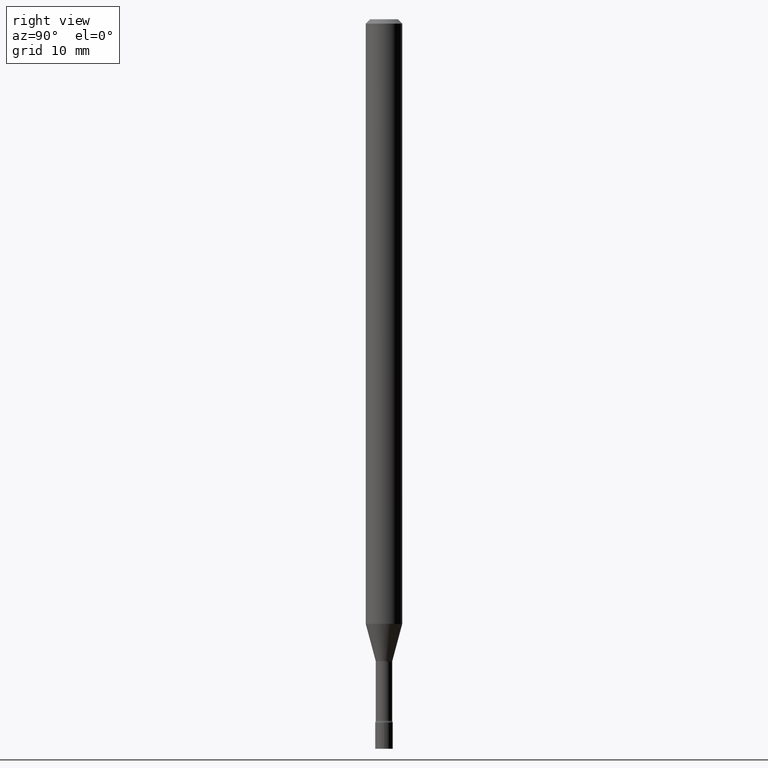
[diagram: clean part render]
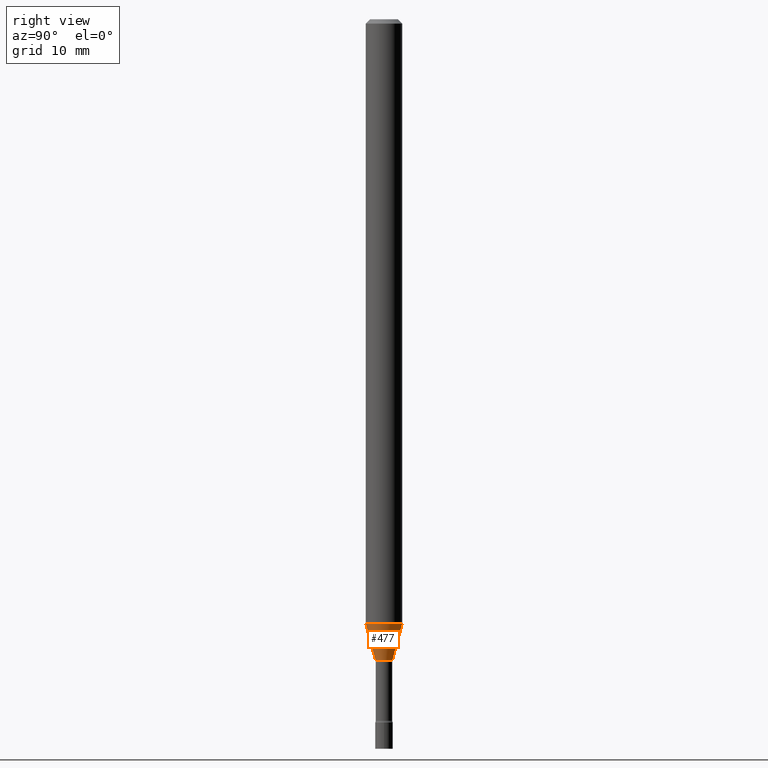
[diagram: same view with one face highlighted and labeled with its STEP entity id]
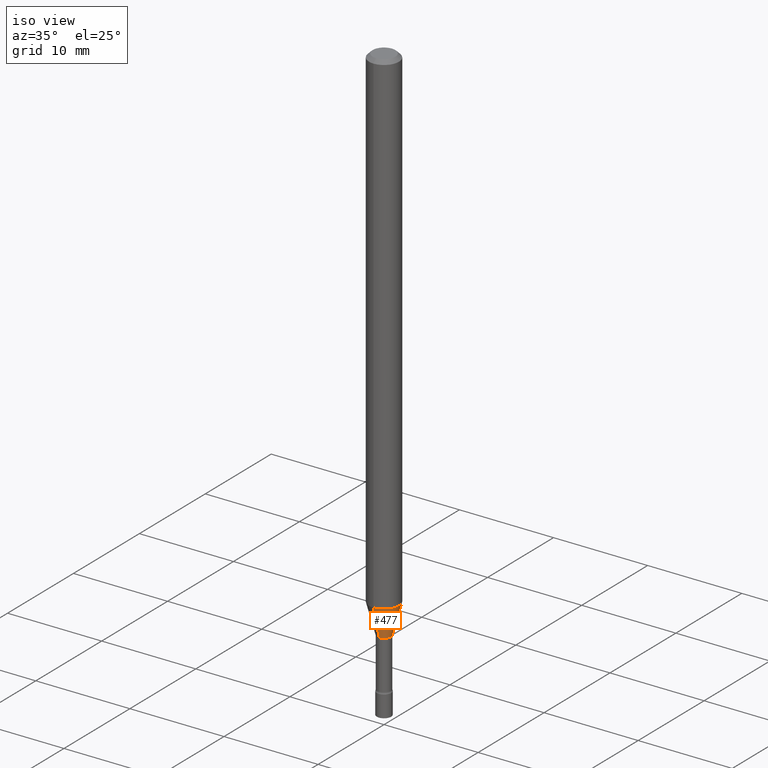
[diagram: same view with one face highlighted and labeled with its STEP entity id]
A machine part, right view. The second image highlights one B-rep face of the part: STEP entity #477.
A second angle (iso view) of the same face is appended — the face is thin or edge-on in the first view.
In plain terms, the highlighted conical surface has half-angle 15 deg.
Its self-contained STEP definition (entity closure, byte-faithful):
#12 = CONICAL_SURFACE ( 'NONE', #308, 0.02871111260566397427, 0.2617993877991500740 ) ;
#16 = ORIENTED_EDGE ( 'NONE', *, *, #87, .F. ) ;
#35 = CARTESIAN_POINT ( 'NONE',  ( -2.004886277601454764E-16, -0.02871111260567164869, -2.198092501787273001 ) ) ;
#38 = AXIS2_PLACEMENT_3D ( 'NONE', #52, #48, #210 ) ;
#43 = EDGE_CURVE ( 'NONE', #267, #416, #138, .T. ) ;
#48 = DIRECTION ( 'NONE',  ( -2.445511190739736583E-29, 3.491420641748579346E-15, 1.000000000000000000 ) ) ;
#52 = CARTESIAN_POINT ( 'NONE',  ( 5.067076339536280147E-29, -7.234190950408780565E-15, -2.071990657300387895 ) ) ;
#63 = DIRECTION ( 'NONE',  ( -1.807323732225328562E-15, -0.2588190451025179639, 0.9659258262890690894 ) ) ;
#67 = AXIS2_PLACEMENT_3D ( 'NONE', #166, #329, #488 ) ;
#86 = ORIENTED_EDGE ( 'NONE', *, *, #160, .T. ) ;
#87 = EDGE_CURVE ( 'NONE', #431, #416, #258, .T. ) ;
#138 = LINE ( 'NONE', #169, #283 ) ;
#151 = CARTESIAN_POINT ( 'NONE',  ( -4.364351673553411330E-16, -0.06250000000000725808, -2.071990657300387451 ) ) ;
#160 = EDGE_CURVE ( 'NONE', #289, #267, #414, .T. ) ;
#164 = VECTOR ( 'NONE', #63, 39.37007874015748854 ) ;
#166 = CARTESIAN_POINT ( 'NONE',  ( 5.375459811401880922E-29, -7.674465533212861118E-15, -2.198092501787273001 ) ) ;
#169 = CARTESIAN_POINT ( 'NONE',  ( 2.040047249755015045E-16, 0.02871111260565629986, -2.198092501787273001 ) ) ;
#201 = CARTESIAN_POINT ( 'NONE',  ( 3.240469674128074148E-16, 0.02871111260565629986, -2.198092501787273001 ) ) ;
#205 = EDGE_CURVE ( 'NONE', #289, #431, #312, .T. ) ;
#210 = DIRECTION ( 'NONE',  ( -6.982962677686265922E-15, -1.000000000000000000, 4.370956789862821150E-15 ) ) ;
#258 = CIRCLE ( 'NONE', #38, 0.06250000000000000000 ) ;
#267 = VERTEX_POINT ( 'NONE', #201 ) ;
#283 = VECTOR ( 'NONE', #295, 39.37007874015748854 ) ;
#289 = VERTEX_POINT ( 'NONE', #474 ) ;
#295 = DIRECTION ( 'NONE',  ( 1.839019923739598738E-15, 0.2588190451025247363, 0.9659258262890673130 ) ) ;
#308 = AXIS2_PLACEMENT_3D ( 'NONE', #358, #322, #445 ) ;
#312 = LINE ( 'NONE', #35, #164 ) ;
#316 = CARTESIAN_POINT ( 'NONE',  ( 4.440892098501129061E-16, 0.06249999999999273498, -2.071990657300387895 ) ) ;
#322 = DIRECTION ( 'NONE',  ( -2.445511190739736583E-29, 3.491420641748579346E-15, 1.000000000000000000 ) ) ;
#329 = DIRECTION ( 'NONE',  ( -2.445511190739736583E-29, 3.491420641748579346E-15, 1.000000000000000000 ) ) ;
#348 = ORIENTED_EDGE ( 'NONE', *, *, #43, .T. ) ;
#353 = FACE_OUTER_BOUND ( 'NONE', #424, .T. ) ;
#358 = CARTESIAN_POINT ( 'NONE',  ( 5.375459811401880922E-29, -7.674465533212861118E-15, -2.198092501787273001 ) ) ;
#377 = ORIENTED_EDGE ( 'NONE', *, *, #205, .F. ) ;
#414 = CIRCLE ( 'NONE', #67, 0.02871111260566397427 ) ;
#416 = VERTEX_POINT ( 'NONE', #316 ) ;
#424 = EDGE_LOOP ( 'NONE', ( #86, #348, #16, #377 ) ) ;
#431 = VERTEX_POINT ( 'NONE', #151 ) ;
#445 = DIRECTION ( 'NONE',  ( -6.982962677686265922E-15, -1.000000000000000000, 0.000000000000000000 ) ) ;
#474 = CARTESIAN_POINT ( 'NONE',  ( -2.004886277601454764E-16, -0.02871111260567164869, -2.198092501787273001 ) ) ;
#477 = ADVANCED_FACE ( 'NONE', ( #353 ), #12, .T. ) ;
#488 = DIRECTION ( 'NONE',  ( -6.982962677686265922E-15, -1.000000000000000000, 0.000000000000000000 ) ) ;